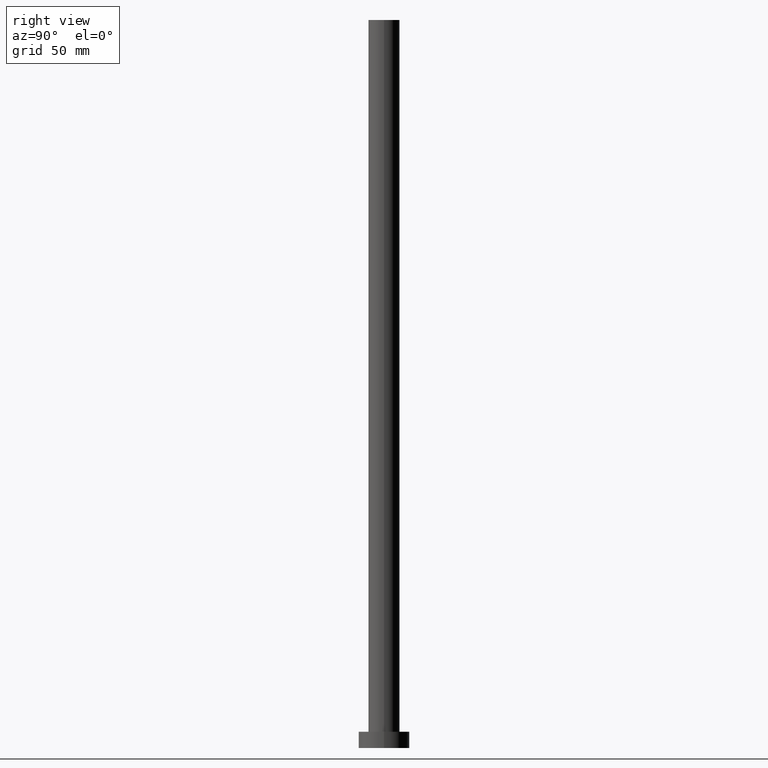
[diagram: clean part render]
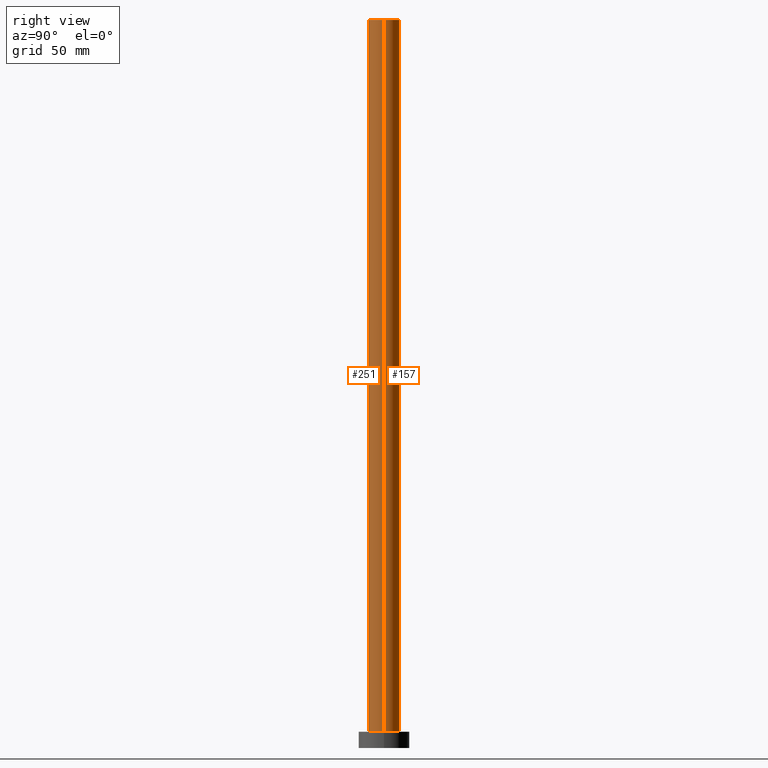
[diagram: same view with one multi-face feature highlighted, each face labeled with its STEP entity id]
A machine part, right view. The highlighted faces form ONE feature: a constant-radius fillet chain: 2 tangent blend faces with common blend radius 6.75 mm. The faces share edges in the B-rep.
Their STEP definitions:
[1] entity #251 (Cylinder):
#12 = CARTESIAN_POINT ( 'NONE',  ( 6.750000000000000000, 8.266365894244634333E-16, 315.0000000000000000 ) ) ;
#33 = CARTESIAN_POINT ( 'NONE',  ( -6.750000000000000000, 0.000000000000000000, 7.000000000000000000 ) ) ;
#36 = VERTEX_POINT ( 'NONE', #62 ) ;
#48 = DIRECTION ( 'NONE',  ( -0.000000000000000000, -0.000000000000000000, -1.000000000000000000 ) ) ;
#56 = CARTESIAN_POINT ( 'NONE',  ( 0.000000000000000000, 0.000000000000000000, 315.0000000000000000 ) ) ;
#57 = ORIENTED_EDGE ( 'NONE', *, *, #196, .F. ) ;
#60 = DIRECTION ( 'NONE',  ( -1.000000000000000000, 0.000000000000000000, 0.000000000000000000 ) ) ;
#62 = CARTESIAN_POINT ( 'NONE',  ( -6.750000000000000000, 0.000000000000000000, 315.0000000000000000 ) ) ;
#71 = LINE ( 'NONE', #146, #130 ) ;
#72 = CIRCLE ( 'NONE', #236, 6.750000000000000000 ) ;
#74 = EDGE_CURVE ( 'NONE', #115, #254, #72, .T. ) ;
#81 = DIRECTION ( 'NONE',  ( -0.000000000000000000, -0.000000000000000000, -1.000000000000000000 ) ) ;
#98 = EDGE_CURVE ( 'NONE', #36, #115, #71, .T. ) ;
#111 = VECTOR ( 'NONE', #212, 1000.000000000000000 ) ;
#115 = VERTEX_POINT ( 'NONE', #33 ) ;
#121 = LINE ( 'NONE', #195, #111 ) ;
#130 = VECTOR ( 'NONE', #48, 1000.000000000000000 ) ;
#134 = AXIS2_PLACEMENT_3D ( 'NONE', #56, #81, #60 ) ;
#138 = CARTESIAN_POINT ( 'NONE',  ( 6.750000000000000000, 8.266365894244634333E-16, 7.000000000000000000 ) ) ;
#142 = CARTESIAN_POINT ( 'NONE',  ( 0.000000000000000000, 0.000000000000000000, 7.000000000000000000 ) ) ;
#146 = CARTESIAN_POINT ( 'NONE',  ( -6.750000000000000000, 0.000000000000000000, 315.0000000000000000 ) ) ;
#162 = EDGE_CURVE ( 'NONE', #241, #254, #121, .T. ) ;
#165 = AXIS2_PLACEMENT_3D ( 'NONE', #171, #250, #253 ) ;
#169 = ORIENTED_EDGE ( 'NONE', *, *, #162, .F. ) ;
#171 = CARTESIAN_POINT ( 'NONE',  ( 0.000000000000000000, 0.000000000000000000, 315.0000000000000000 ) ) ;
#175 = CYLINDRICAL_SURFACE ( 'NONE', #134, 6.750000000000000000 ) ;
#187 = FACE_OUTER_BOUND ( 'NONE', #188, .T. ) ;
#188 = EDGE_LOOP ( 'NONE', ( #169, #57, #226, #209 ) ) ;
#195 = CARTESIAN_POINT ( 'NONE',  ( 6.750000000000000000, 8.266365894244634333E-16, 315.0000000000000000 ) ) ;
#196 = EDGE_CURVE ( 'NONE', #36, #241, #211, .T. ) ;
#209 = ORIENTED_EDGE ( 'NONE', *, *, #74, .T. ) ;
#211 = CIRCLE ( 'NONE', #165, 6.750000000000000000 ) ;
#212 = DIRECTION ( 'NONE',  ( -0.000000000000000000, -0.000000000000000000, -1.000000000000000000 ) ) ;
#219 = DIRECTION ( 'NONE',  ( 1.000000000000000000, 0.000000000000000000, 0.000000000000000000 ) ) ;
#226 = ORIENTED_EDGE ( 'NONE', *, *, #98, .T. ) ;
#236 = AXIS2_PLACEMENT_3D ( 'NONE', #142, #239, #219 ) ;
#239 = DIRECTION ( 'NONE',  ( 0.000000000000000000, 0.000000000000000000, 1.000000000000000000 ) ) ;
#241 = VERTEX_POINT ( 'NONE', #12 ) ;
#250 = DIRECTION ( 'NONE',  ( 0.000000000000000000, 0.000000000000000000, 1.000000000000000000 ) ) ;
#251 = ADVANCED_FACE ( 'NONE', ( #187 ), #175, .T. ) ;
#253 = DIRECTION ( 'NONE',  ( 1.000000000000000000, 0.000000000000000000, 0.000000000000000000 ) ) ;
#254 = VERTEX_POINT ( 'NONE', #138 ) ;
[2] entity #157 (Cylinder):
#1 = AXIS2_PLACEMENT_3D ( 'NONE', #100, #255, #63 ) ;
#12 = CARTESIAN_POINT ( 'NONE',  ( 6.750000000000000000, 8.266365894244634333E-16, 315.0000000000000000 ) ) ;
#19 = DIRECTION ( 'NONE',  ( 1.000000000000000000, 0.000000000000000000, 0.000000000000000000 ) ) ;
#20 = ORIENTED_EDGE ( 'NONE', *, *, #168, .T. ) ;
#33 = CARTESIAN_POINT ( 'NONE',  ( -6.750000000000000000, 0.000000000000000000, 7.000000000000000000 ) ) ;
#35 = DIRECTION ( 'NONE',  ( 0.000000000000000000, 0.000000000000000000, 1.000000000000000000 ) ) ;
#36 = VERTEX_POINT ( 'NONE', #62 ) ;
#41 = EDGE_LOOP ( 'NONE', ( #234, #80, #20, #220 ) ) ;
#46 = CIRCLE ( 'NONE', #180, 6.750000000000000000 ) ;
#48 = DIRECTION ( 'NONE',  ( -0.000000000000000000, -0.000000000000000000, -1.000000000000000000 ) ) ;
#54 = CARTESIAN_POINT ( 'NONE',  ( 0.000000000000000000, 0.000000000000000000, 315.0000000000000000 ) ) ;
#62 = CARTESIAN_POINT ( 'NONE',  ( -6.750000000000000000, 0.000000000000000000, 315.0000000000000000 ) ) ;
#63 = DIRECTION ( 'NONE',  ( -1.000000000000000000, 0.000000000000000000, 0.000000000000000000 ) ) ;
#71 = LINE ( 'NONE', #146, #130 ) ;
#80 = ORIENTED_EDGE ( 'NONE', *, *, #162, .T. ) ;
#89 = AXIS2_PLACEMENT_3D ( 'NONE', #54, #210, #221 ) ;
#98 = EDGE_CURVE ( 'NONE', #36, #115, #71, .T. ) ;
#100 = CARTESIAN_POINT ( 'NONE',  ( 0.000000000000000000, 0.000000000000000000, 315.0000000000000000 ) ) ;
#111 = VECTOR ( 'NONE', #212, 1000.000000000000000 ) ;
#115 = VERTEX_POINT ( 'NONE', #33 ) ;
#121 = LINE ( 'NONE', #195, #111 ) ;
#130 = VECTOR ( 'NONE', #48, 1000.000000000000000 ) ;
#138 = CARTESIAN_POINT ( 'NONE',  ( 6.750000000000000000, 8.266365894244634333E-16, 7.000000000000000000 ) ) ;
#146 = CARTESIAN_POINT ( 'NONE',  ( -6.750000000000000000, 0.000000000000000000, 315.0000000000000000 ) ) ;
#157 = ADVANCED_FACE ( 'NONE', ( #215 ), #189, .T. ) ;
#162 = EDGE_CURVE ( 'NONE', #241, #254, #121, .T. ) ;
#168 = EDGE_CURVE ( 'NONE', #254, #115, #46, .T. ) ;
#180 = AXIS2_PLACEMENT_3D ( 'NONE', #227, #35, #19 ) ;
#189 = CYLINDRICAL_SURFACE ( 'NONE', #1, 6.750000000000000000 ) ;
#195 = CARTESIAN_POINT ( 'NONE',  ( 6.750000000000000000, 8.266365894244634333E-16, 315.0000000000000000 ) ) ;
#210 = DIRECTION ( 'NONE',  ( 0.000000000000000000, 0.000000000000000000, 1.000000000000000000 ) ) ;
#212 = DIRECTION ( 'NONE',  ( -0.000000000000000000, -0.000000000000000000, -1.000000000000000000 ) ) ;
#215 = FACE_OUTER_BOUND ( 'NONE', #41, .T. ) ;
#220 = ORIENTED_EDGE ( 'NONE', *, *, #98, .F. ) ;
#221 = DIRECTION ( 'NONE',  ( 1.000000000000000000, 0.000000000000000000, 0.000000000000000000 ) ) ;
#227 = CARTESIAN_POINT ( 'NONE',  ( 0.000000000000000000, 0.000000000000000000, 7.000000000000000000 ) ) ;
#230 = CIRCLE ( 'NONE', #89, 6.750000000000000000 ) ;
#231 = EDGE_CURVE ( 'NONE', #241, #36, #230, .T. ) ;
#234 = ORIENTED_EDGE ( 'NONE', *, *, #231, .F. ) ;
#241 = VERTEX_POINT ( 'NONE', #12 ) ;
#254 = VERTEX_POINT ( 'NONE', #138 ) ;
#255 = DIRECTION ( 'NONE',  ( -0.000000000000000000, -0.000000000000000000, -1.000000000000000000 ) ) ;